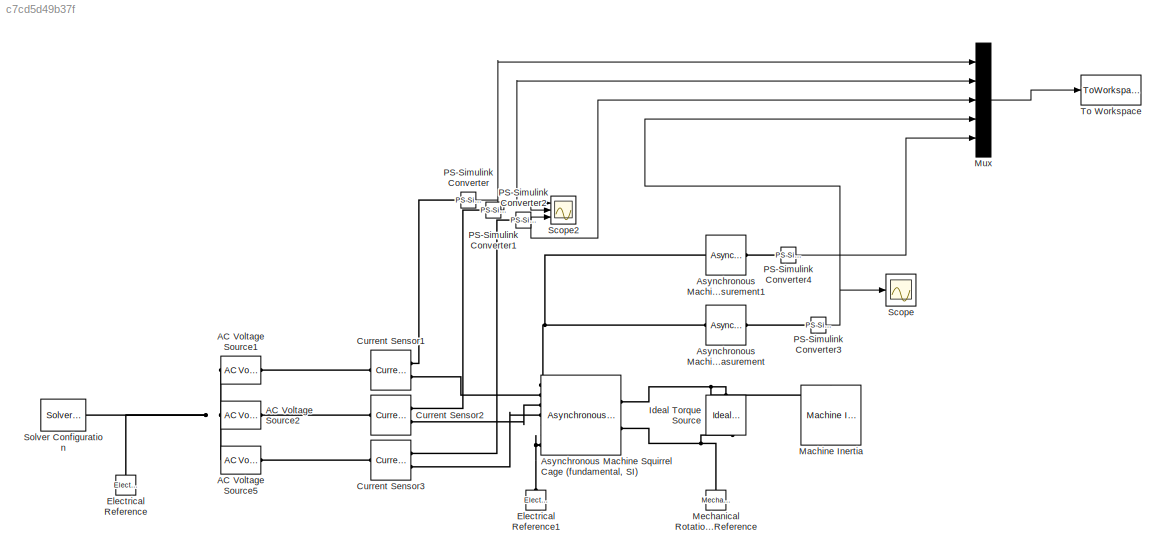
MODEL slx_c7cd5d49b37f
KIND model
CONFIG AbsTol = auto
CONFIG EnableMultiTasking = off
CONFIG FixedStep = Ts
CONFIG MaxStep = auto
CONFIG MinStep = auto
CONFIG RelTol = 1e-3
CONFIG SampleTimeConstraint = Unconstrained
CONFIG Solver = ode4
CONFIG SolverName = ode4
CONFIG StartTime = 0.0
CONFIG StopTime = Tsim
BLOCK [Reference] AC Voltage Source1  REF=fl_lib/Electrical/Electrical Sources/AC Voltage Source
  Ports = [0, 0, 0, 0, 0, 1, 1]
  SourceBlock = fl_lib/Electrical/Electrical Sources/AC Voltage Source
  SourceProductBaseCode = SS
  SourceProductName = Simscape
  SourceType = AC Voltage Source
BLOCK [Reference] AC Voltage Source2  REF=fl_lib/Electrical/Electrical Sources/AC Voltage Source
  Ports = [0, 0, 0, 0, 0, 1, 1]
  SourceBlock = fl_lib/Electrical/Electrical Sources/AC Voltage Source
  SourceProductBaseCode = SS
  SourceProductName = Simscape
  SourceType = AC Voltage Source
BLOCK [Reference] AC Voltage Source5  REF=fl_lib/Electrical/Electrical Sources/AC Voltage Source
  Ports = [0, 0, 0, 0, 0, 1, 1]
  SourceBlock = fl_lib/Electrical/Electrical Sources/AC Voltage Source
  SourceProductBaseCode = SS
  SourceProductName = Simscape
  SourceType = AC Voltage Source
BLOCK [Reference] Asynchronous Machine Measurement  REF=pe_lib/Machines/Asynchronous Machine
Measurement
  Ports = [0, 0, 0, 0, 0, 1, 1]
  SourceBlock = pe_lib/Machines/Asynchronous Machine\nMeasurement
  SourceProductBaseCode = PS
  SourceProductName = Simscape Power Systems
  SourceType = Asynchronous Machine\nMeasurement
BLOCK [Reference] Asynchronous Machine Measurement1  REF=pe_lib/Machines/Asynchronous Machine
Measurement
  Ports = [0, 0, 0, 0, 0, 1, 1]
  SourceBlock = pe_lib/Machines/Asynchronous Machine\nMeasurement
  SourceProductBaseCode = PS
  SourceProductName = Simscape Power Systems
  SourceType = Asynchronous Machine\nMeasurement
BLOCK [Reference] Asynchronous Machine Squirrel Cage (fundamental, SI)  REF=pe_lib/Machines/Asynchronous
Machine
(Squirrel Cage)/Asynchronous Machine
Squirrel Cage
(fundamental, SI)
  Ports = [0, 0, 0, 0, 0, 2, 7]
  SourceBlock = pe_lib/Machines/Asynchronous\nMachine\n(Squirrel Cage)/Asynchronous Machine\nSquirrel Cage\n(fundamental, SI)
  SourceProductBaseCode = PS
  SourceProductName = Simscape Power Systems
  SourceType = Asynchronous Machine\nSquirrel Cage\n(fundamental, SI)
BLOCK [Reference] Current Sensor1  REF=fl_lib/Electrical/Electrical Sensors/Current Sensor
  Ports = [0, 0, 0, 0, 0, 1, 2]
  SourceBlock = fl_lib/Electrical/Electrical Sensors/Current Sensor
  SourceProductBaseCode = SS
  SourceProductName = Simscape
  SourceType = Current Sensor
BLOCK [Reference] Current Sensor2  REF=fl_lib/Electrical/Electrical Sensors/Current Sensor
  Ports = [0, 0, 0, 0, 0, 1, 2]
  SourceBlock = fl_lib/Electrical/Electrical Sensors/Current Sensor
  SourceProductBaseCode = SS
  SourceProductName = Simscape
  SourceType = Current Sensor
BLOCK [Reference] Current Sensor3  REF=fl_lib/Electrical/Electrical Sensors/Current Sensor
  Ports = [0, 0, 0, 0, 0, 1, 2]
  SourceBlock = fl_lib/Electrical/Electrical Sensors/Current Sensor
  SourceProductBaseCode = SS
  SourceProductName = Simscape
  SourceType = Current Sensor
BLOCK [Reference] Electrical Reference  REF=fl_lib/Electrical/Electrical Elements/Electrical Reference
  Ports = [0, 0, 0, 0, 0, 1]
  SourceBlock = fl_lib/Electrical/Electrical Elements/Electrical Reference
  SourceProductBaseCode = SS
  SourceProductName = Simscape
  SourceType = Electrical Reference
BLOCK [Reference] Electrical Reference1  REF=fl_lib/Electrical/Electrical Elements/Electrical Reference
  Ports = [0, 0, 0, 0, 0, 1]
  SourceBlock = fl_lib/Electrical/Electrical Elements/Electrical Reference
  SourceProductBaseCode = SS
  SourceProductName = Simscape
  SourceType = Electrical Reference
BLOCK [Reference] Ideal Torque Source  REF=fl_lib/Mechanical/Mechanical Sources/Ideal Torque Source
  Ports = [0, 0, 0, 0, 0, 1, 2]
  SourceBlock = fl_lib/Mechanical/Mechanical Sources/Ideal Torque Source
  SourceProductBaseCode = SS
  SourceProductName = Simscape
  SourceType = Ideal Torque Source
BLOCK [Reference] Machine Inertia  REF=pe_lib/Machines/Machine
Inertia
  Ports = [0, 0, 0, 0, 0, 1]
  SourceBlock = pe_lib/Machines/Machine\nInertia
  SourceProductBaseCode = PS
  SourceProductName = Simscape Power Systems
  SourceType = Machine\nInertia
BLOCK [Reference] Mechanical Rotational Reference  REF=fl_lib/Mechanical/Rotational Elements/Mechanical
Rotational Reference
  Ports = [0, 0, 0, 0, 0, 1]
  SourceBlock = fl_lib/Mechanical/Rotational Elements/Mechanical\nRotational Reference
  SourceProductBaseCode = SS
  SourceProductName = Simscape
  SourceType = Mechanical\nRotational Reference
BLOCK [Mux] Mux
  DisplayOption = bar
  Inputs = 5
  Ports = [5, 1]
BLOCK [Reference] PS-Simulink Converter  REF=nesl_utility/PS-Simulink
Converter
  Ports = [0, 1, 0, 0, 0, 1]
  SourceBlock = nesl_utility/PS-Simulink\nConverter
  SourceProductBaseCode = SS
  SourceProductName = Simscape
  SourceType = PS-Simulink\nConverter
BLOCK [Reference] PS-Simulink Converter1  REF=nesl_utility/PS-Simulink
Converter
  Ports = [0, 1, 0, 0, 0, 1]
  SourceBlock = nesl_utility/PS-Simulink\nConverter
  SourceProductBaseCode = SS
  SourceProductName = Simscape
  SourceType = PS-Simulink\nConverter
BLOCK [Reference] PS-Simulink Converter2  REF=nesl_utility/PS-Simulink
Converter
  Ports = [0, 1, 0, 0, 0, 1]
  SourceBlock = nesl_utility/PS-Simulink\nConverter
  SourceProductBaseCode = SS
  SourceProductName = Simscape
  SourceType = PS-Simulink\nConverter
BLOCK [Reference] PS-Simulink Converter3  REF=nesl_utility/PS-Simulink
Converter
  Ports = [0, 1, 0, 0, 0, 1]
  SourceBlock = nesl_utility/PS-Simulink\nConverter
  SourceProductBaseCode = SS
  SourceProductName = Simscape
  SourceType = PS-Simulink\nConverter
BLOCK [Reference] PS-Simulink Converter4  REF=nesl_utility/PS-Simulink
Converter
  Ports = [0, 1, 0, 0, 0, 1]
  SourceBlock = nesl_utility/PS-Simulink\nConverter
  SourceProductBaseCode = SS
  SourceProductName = Simscape
  SourceType = PS-Simulink\nConverter
BLOCK [Scope] Scope
  Floating = off
  NumInputPorts = 1
  Ports = [1]
  ScopeSpecificationString = Simulink.scopes.TimeScopeBlockCfg('CurrentConfiguration', extmgr.ConfigurationSet(extmgr.Configuration('Core','General UI',true),extmgr.Configuration('Core','Source UI',true),extmgr.Configuration('Sources','WiredSimulink',true),extmgr.Configuration('Visuals','Time Domain',true,'SerializedDisplays',{struct('MinYLimReal','-1.48675','MaxYLimReal','5.35938','YLabelReal','','MinYLimMag','0.00000','MaxY...<+1342ch>
BLOCK [Scope] Scope2
  Floating = off
  NumInputPorts = 3
  Ports = [3]
  ScopeSpecificationString = Simulink.scopes.TimeScopeBlockCfg('CurrentConfiguration', extmgr.ConfigurationSet(extmgr.Configuration('Core','General UI',true),extmgr.Configuration('Core','Source UI',true),extmgr.Configuration('Sources','WiredSimulink',true,'DataLoggingVariableName','ScopeData2'),extmgr.Configuration('Visuals','Time Domain',true),extmgr.Configuration('Tools','Plot Navigation',true),extmgr.Configuration('Tools',...<+40ch>
BLOCK [Reference] Solver Configuration  REF=nesl_utility/Solver
Configuration
  Ports = [0, 0, 0, 0, 0, 0, 1]
  SourceBlock = nesl_utility/Solver\nConfiguration
  SourceProductBaseCode = SS
  SourceProductName = Simscape
  SourceType = Solver\nConfiguration
BLOCK [ToWorkspace] To Workspace
  FixptAsFi = on
  MaxDataPoints = inf
  Ports = [1]
  SampleTime = -1
  Save2DSignal = 3-D array (concatenate along third dimension)
  VariableName = Mjerenja
LINE Mux:1 -> To Workspace:1
NET PS-Simulink Converter1:1 -> Mux:2, Scope2:2
NET PS-Simulink Converter2:1 -> Mux:3, Scope2:3
NET PS-Simulink Converter3:1 -> Mux:4, Scope:1
LINE PS-Simulink Converter4:1 -> Mux:5
NET PS-Simulink Converter:1 -> Mux:1, Scope2:1
PLINE AC Voltage Source1:LConn1 -- Current Sensor1:LConn1
PNET net1: AC Voltage Source1:RConn1 -- AC Voltage Source2:RConn1 -- AC Voltage Source5:RConn1 -- Electrical Reference:LConn1 -- Solver Configuration:RConn1
PLINE AC Voltage Source2:LConn1 -- Current Sensor2:LConn1
PLINE AC Voltage Source5:LConn1 -- Current Sensor3:LConn1
PNET net2: Asynchronous Machine Measurement1:LConn1 -- Asynchronous Machine Measurement:LConn1 -- Asynchronous Machine Squirrel Cage (fundamental, SI):RConn1
PLINE Asynchronous Machine Measurement1:RConn1 -- PS-Simulink Converter4:LConn1
PLINE Asynchronous Machine Measurement:RConn1 -- PS-Simulink Converter3:LConn1
PNET net3: Asynchronous Machine Squirrel Cage (fundamental, SI):LConn1 -- Ideal Torque Source:LConn1 -- Machine Inertia:LConn1
PNET net4: Asynchronous Machine Squirrel Cage (fundamental, SI):LConn2 -- Ideal Torque Source:RConn2 -- Mechanical Rotational Reference:LConn1
PLINE Asynchronous Machine Squirrel Cage (fundamental, SI):RConn2 -- Current Sensor1:RConn2
PLINE Asynchronous Machine Squirrel Cage (fundamental, SI):RConn3 -- Current Sensor2:RConn2
PLINE Asynchronous Machine Squirrel Cage (fundamental, SI):RConn4 -- Current Sensor3:RConn2
PNET net5: Asynchronous Machine Squirrel Cage (fundamental, SI):RConn5 -- Asynchronous Machine Squirrel Cage (fundamental, SI):RConn6 -- Asynchronous Machine Squirrel Cage (fundamental, SI):RConn7 -- Electrical Reference1:LConn1
PLINE Current Sensor1:RConn1 -- PS-Simulink Converter:LConn1
PLINE Current Sensor2:RConn1 -- PS-Simulink Converter1:LConn1
PLINE Current Sensor3:RConn1 -- PS-Simulink Converter2:LConn1
note: NET lines group one-source signal fan-out (src -> all destinations, sorted); 1:1 wires keep LINE; PNET lines group multi-terminal physical nets as a canonical sorted terminal list (undirected conserving connections); 2-terminal nets keep the pairwise PLINE form
